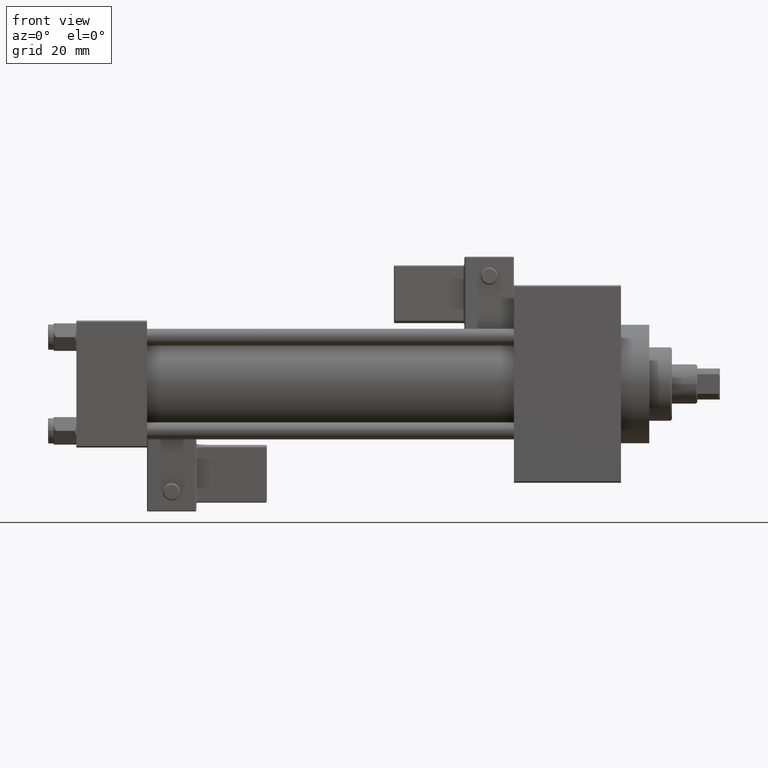
[diagram: clean part render]
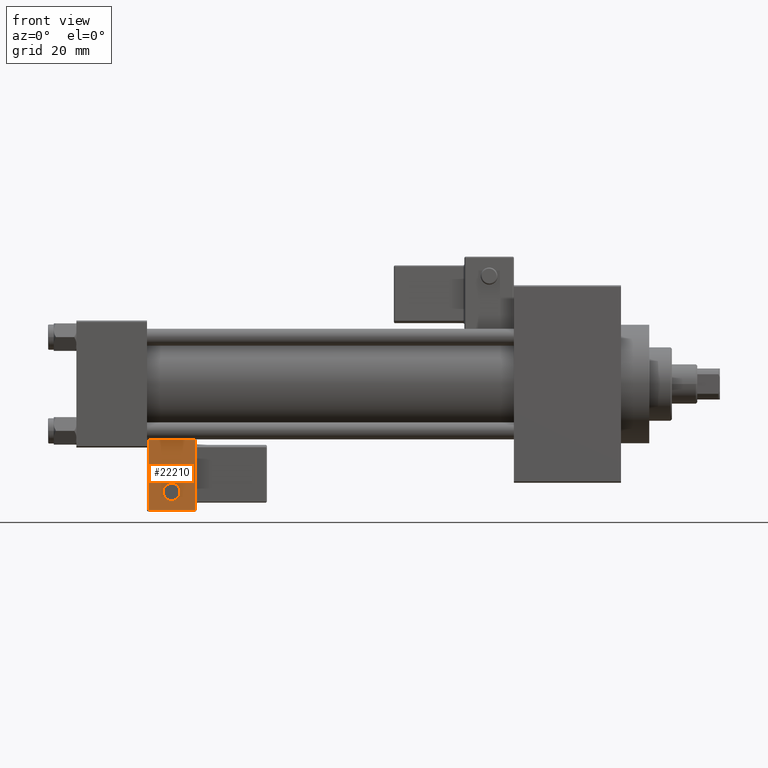
[diagram: same view with one face highlighted and labeled with its STEP entity id]
A machine part, front view. The second image highlights one B-rep face of the part: STEP entity #22210.
In plain terms, the highlighted planar face has unit normal (0, 0.9994, 0.0353).
Its self-contained STEP definition (entity closure, byte-faithful):
#580 = CARTESIAN_POINT ( 'NONE',  ( -4.336808689942017736E-16, -33.75000000000000000, 6.000000000000001776 ) ) ;
#721 = VECTOR ( 'NONE', #1697, 1000.000000000000000 ) ;
#1697 = DIRECTION ( 'NONE',  ( -1.334402673828313339E-16, 0.000000000000000000, 1.000000000000000000 ) ) ;
#2483 = DIRECTION ( 'NONE',  ( 0.000000000000000000, -0.000000000000000000, 1.000000000000000000 ) ) ;
#2730 = ORIENTED_EDGE ( 'NONE', *, *, #27800, .T. ) ;
#2846 = CIRCLE ( 'NONE', #25319, 2.999999999999999112 ) ;
#5278 = CARTESIAN_POINT ( 'NONE',  ( -8.250000000000000000, -33.75000000000000000, 24.50000000000000355 ) ) ;
#5858 = DIRECTION ( 'NONE',  ( 1.000000000000000000, 0.000000000000000000, 0.000000000000000000 ) ) ;
#6198 = CIRCLE ( 'NONE', #32667, 2.999999999999999112 ) ;
#7422 = EDGE_CURVE ( 'NONE', #12173, #7689, #2846, .T. ) ;
#7486 = VECTOR ( 'NONE', #48323, 1000.000000000000000 ) ;
#7689 = VERTEX_POINT ( 'NONE', #34415 ) ;
#8487 = CARTESIAN_POINT ( 'NONE',  ( 4.857225732735059864E-15, -33.75000000000000000, 24.50000000000000000 ) ) ;
#9236 = CARTESIAN_POINT ( 'NONE',  ( 8.250000000000003553, -33.75000000000000000, 1.100882205908358986E-15 ) ) ;
#10773 = DIRECTION ( 'NONE',  ( 0.000000000000000000, 1.000000000000000000, 0.000000000000000000 ) ) ;
#11274 = FACE_BOUND ( 'NONE', #49387, .T. ) ;
#12173 = VERTEX_POINT ( 'NONE', #40822 ) ;
#14095 = CARTESIAN_POINT ( 'NONE',  ( 8.250000000000003553, -33.75000000000000000, -0.5000000000000002220 ) ) ;
#14410 = EDGE_CURVE ( 'NONE', #7689, #12173, #6198, .T. ) ;
#14544 = FACE_OUTER_BOUND ( 'NONE', #37859, .T. ) ;
#15480 = VERTEX_POINT ( 'NONE', #36395 ) ;
#17226 = ORIENTED_EDGE ( 'NONE', *, *, #36792, .T. ) ;
#17696 = CARTESIAN_POINT ( 'NONE',  ( -8.250000000000003553, -33.75000000000000000, -0.5000000000000002220 ) ) ;
#20038 = DIRECTION ( 'NONE',  ( -1.000000000000000000, 0.000000000000000000, 1.982541115402065110E-16 ) ) ;
#20982 = VERTEX_POINT ( 'NONE', #14095 ) ;
#22130 = ORIENTED_EDGE ( 'NONE', *, *, #14410, .F. ) ;
#22210 = ADVANCED_FACE ( 'NONE', ( #14544, #11274 ), #30104, .F. ) ;
#22671 = DIRECTION ( 'NONE',  ( -0.000000000000000000, -1.000000000000000000, -0.000000000000000000 ) ) ;
#25319 = AXIS2_PLACEMENT_3D ( 'NONE', #26684, #22671, #41993 ) ;
#26684 = CARTESIAN_POINT ( 'NONE',  ( -4.336808689942017736E-16, -33.75000000000000000, 6.000000000000001776 ) ) ;
#27520 = VECTOR ( 'NONE', #5858, 1000.000000000000000 ) ;
#27800 = EDGE_CURVE ( 'NONE', #29193, #20982, #40250, .T. ) ;
#28776 = CARTESIAN_POINT ( 'NONE',  ( -8.250000000000003553, -33.75000000000000000, 1.100882205908358788E-15 ) ) ;
#29193 = VERTEX_POINT ( 'NONE', #17696 ) ;
#29360 = CARTESIAN_POINT ( 'NONE',  ( 0.000000000000000000, -33.75000000000000000, 0.000000000000000000 ) ) ;
#30104 = PLANE ( 'NONE',  #37758 ) ;
#32667 = AXIS2_PLACEMENT_3D ( 'NONE', #580, #38741, #35218 ) ;
#32853 = EDGE_CURVE ( 'NONE', #15480, #34785, #42877, .T. ) ;
#33236 = CARTESIAN_POINT ( 'NONE',  ( 0.000000000000000000, -33.75000000000000000, -0.5000000000000002220 ) ) ;
#34415 = CARTESIAN_POINT ( 'NONE',  ( -4.336808689942017736E-16, -33.75000000000000000, 9.000000000000001776 ) ) ;
#34785 = VERTEX_POINT ( 'NONE', #5278 ) ;
#35218 = DIRECTION ( 'NONE',  ( 0.000000000000000000, 0.000000000000000000, 1.000000000000000000 ) ) ;
#36395 = CARTESIAN_POINT ( 'NONE',  ( 8.250000000000000000, -33.75000000000000000, 24.50000000000000000 ) ) ;
#36792 = EDGE_CURVE ( 'NONE', #20982, #15480, #47371, .T. ) ;
#37301 = LINE ( 'NONE', #28776, #7486 ) ;
#37758 = AXIS2_PLACEMENT_3D ( 'NONE', #29360, #10773, #2483 ) ;
#37859 = EDGE_LOOP ( 'NONE', ( #45776, #41381, #2730, #17226 ) ) ;
#38741 = DIRECTION ( 'NONE',  ( -0.000000000000000000, -1.000000000000000000, -0.000000000000000000 ) ) ;
#40250 = LINE ( 'NONE', #33236, #27520 ) ;
#40822 = CARTESIAN_POINT ( 'NONE',  ( -6.628682924999581145E-17, -33.75000000000000000, 3.000000000000001776 ) ) ;
#41381 = ORIENTED_EDGE ( 'NONE', *, *, #49068, .T. ) ;
#41993 = DIRECTION ( 'NONE',  ( 0.000000000000000000, 0.000000000000000000, 1.000000000000000000 ) ) ;
#42877 = LINE ( 'NONE', #8487, #43136 ) ;
#43136 = VECTOR ( 'NONE', #20038, 1000.000000000000000 ) ;
#44467 = ORIENTED_EDGE ( 'NONE', *, *, #7422, .F. ) ;
#45776 = ORIENTED_EDGE ( 'NONE', *, *, #32853, .T. ) ;
#47371 = LINE ( 'NONE', #9236, #721 ) ;
#48323 = DIRECTION ( 'NONE',  ( -1.334402673828313093E-16, 0.000000000000000000, -1.000000000000000000 ) ) ;
#49068 = EDGE_CURVE ( 'NONE', #34785, #29193, #37301, .T. ) ;
#49387 = EDGE_LOOP ( 'NONE', ( #22130, #44467 ) ) ;